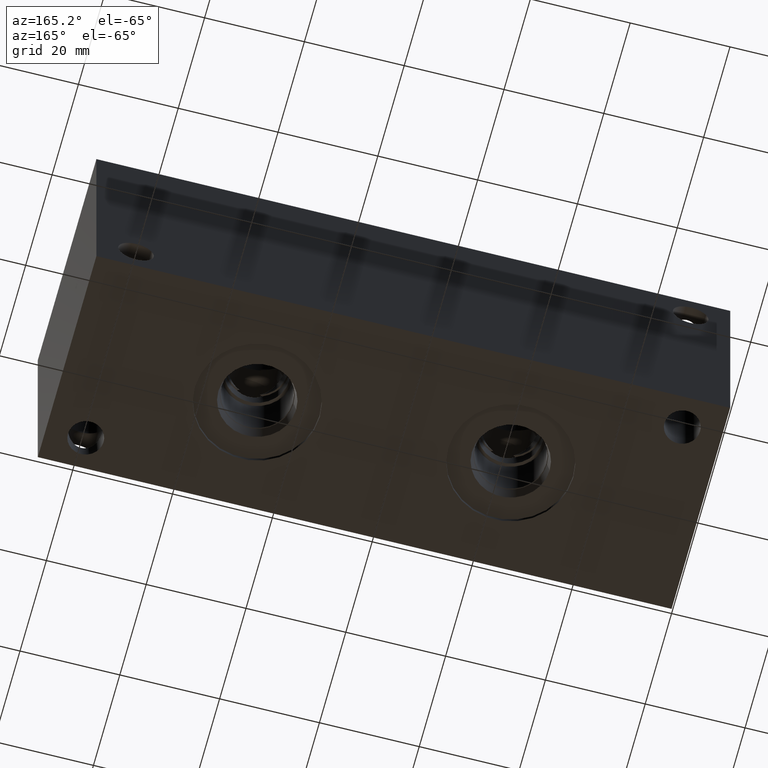
[diagram: clean part render]
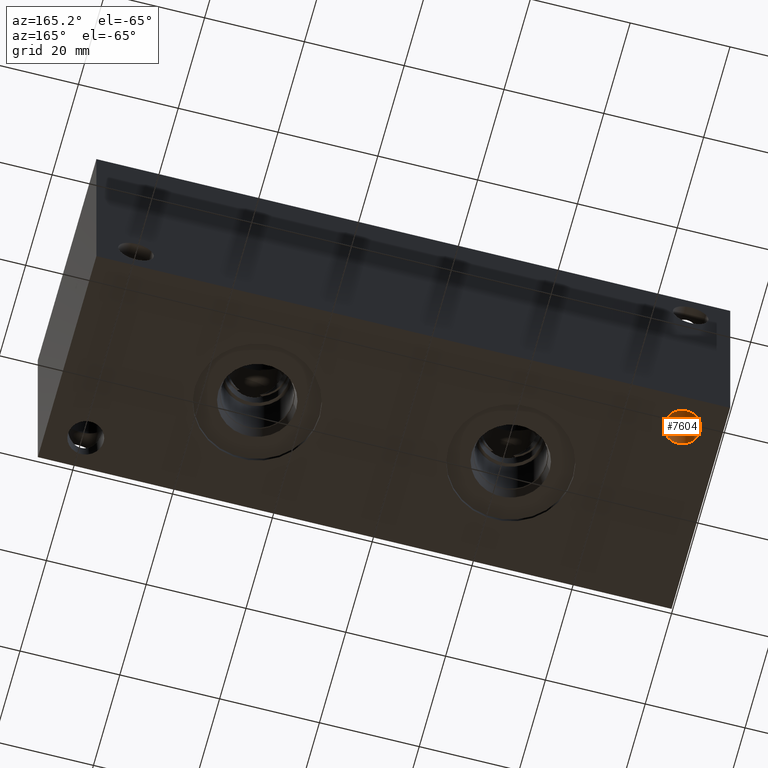
[diagram: same view with one face highlighted and labeled with its STEP entity id]
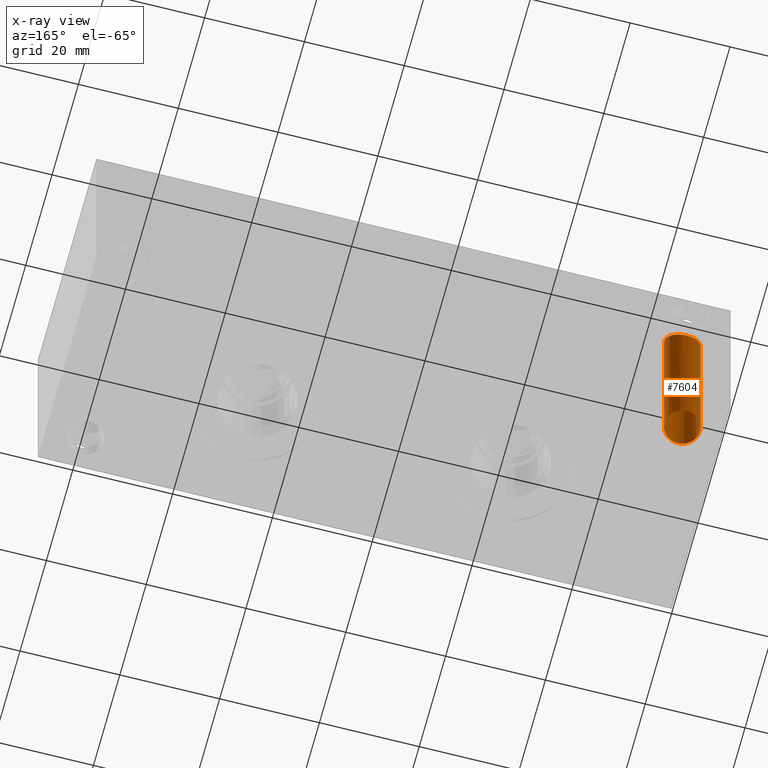
[diagram: x-ray of the same camera — body ghosted, the highlighted face saturated]
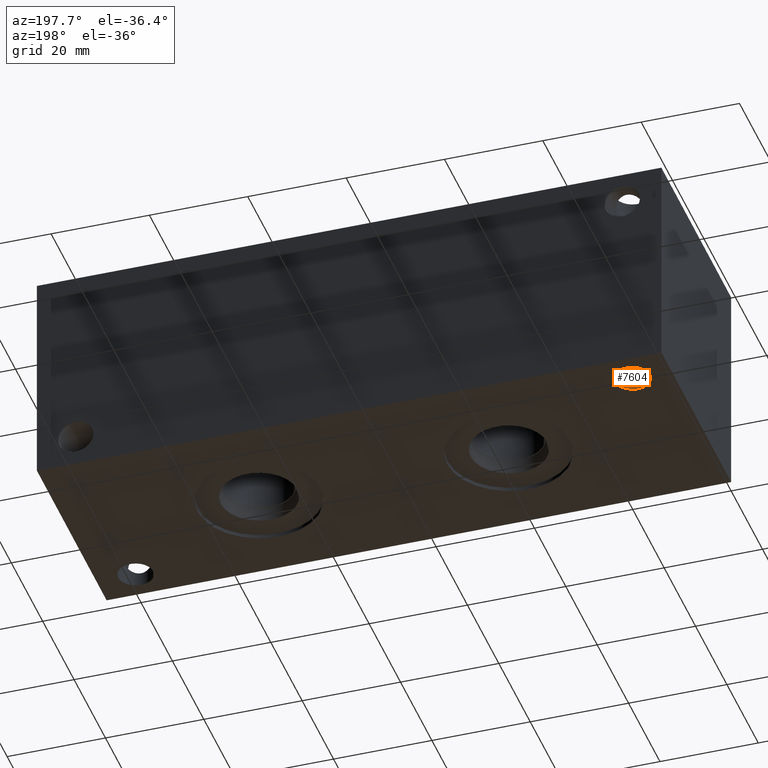
[diagram: same view with one face highlighted and labeled with its STEP entity id]
A machine part, auxiliary view. The second image highlights one B-rep face of the part: STEP entity #7604.
The next image is the same camera in x-ray: the body ghosted, the highlighted face saturated — about 1% of this face is hidden behind the body in this view.
A second angle (auxiliary view) of the same face is appended — the face is thin or edge-on in the first view.
In plain terms, the highlighted cylindrical surface (bore or boss wall) has radius 3.5687 mm, axis along (0, 0, 1).
Its self-contained STEP definition (entity closure, byte-faithful):
#26=ELLIPSE('',#7989,5.04690394004088,3.5687);
#27=ELLIPSE('',#7991,5.04690394004088,3.5687);
#95=CYLINDRICAL_SURFACE('',#8036,3.5687);
#215=CIRCLE('',#8037,3.5687);
#997=FACE_OUTER_BOUND('',#1428,.T.);
#1428=EDGE_LOOP('',(#6621,#6622,#6623,#6624,#6625));
#2121=LINE('',#13191,#2802);
#2802=VECTOR('',#9539,3.5687);
#3481=VERTEX_POINT('',#13093);
#3482=VERTEX_POINT('',#13095);
#3506=VERTEX_POINT('',#13190);
#4514=EDGE_CURVE('',#3481,#3482,#26,.T.);
#4515=EDGE_CURVE('',#3482,#3481,#27,.T.);
#4557=EDGE_CURVE('',#3481,#3506,#2121,.T.);
#4558=EDGE_CURVE('',#3506,#3506,#215,.T.);
#6621=ORIENTED_EDGE('',*,*,#4515,.T.);
#6622=ORIENTED_EDGE('',*,*,#4557,.T.);
#6623=ORIENTED_EDGE('',*,*,#4558,.F.);
#6624=ORIENTED_EDGE('',*,*,#4557,.F.);
#6625=ORIENTED_EDGE('',*,*,#4514,.T.);
#7604=ADVANCED_FACE('',(#997),#95,.F.);
#7989=AXIS2_PLACEMENT_3D('',#13097,#9431,#9432);
#7991=AXIS2_PLACEMENT_3D('',#13099,#9435,#9436);
#8036=AXIS2_PLACEMENT_3D('',#13189,#9537,#9538);
#8037=AXIS2_PLACEMENT_3D('',#13192,#9540,#9541);
#9431=DIRECTION('center_axis',(0.,-0.707106781186545,0.70710678118655));
#9432=DIRECTION('ref_axis',(0.,0.70710678118655,0.707106781186545));
#9435=DIRECTION('center_axis',(0.,0.707106781186545,0.70710678118655));
#9436=DIRECTION('ref_axis',(0.,-0.70710678118655,0.707106781186545));
#9537=DIRECTION('center_axis',(0.,0.,1.));
#9538=DIRECTION('ref_axis',(1.,0.,0.));
#9539=DIRECTION('',(0.,0.,-1.));
#9540=DIRECTION('center_axis',(0.,0.,1.));
#9541=DIRECTION('ref_axis',(1.,0.,0.));
#13093=CARTESIAN_POINT('',(4.3561,38.1,38.1));
#13095=CARTESIAN_POINT('',(11.4935,38.1,38.1));
#13097=CARTESIAN_POINT('Origin',(7.9248,38.1,38.1));
#13099=CARTESIAN_POINT('Origin',(7.9248,38.1,38.1));
#13189=CARTESIAN_POINT('Origin',(7.9248,38.1,-97.2560513880759));
#13190=CARTESIAN_POINT('',(4.3561,38.1,0.));
#13191=CARTESIAN_POINT('',(4.3561,38.1,-97.2560513880759));
#13192=CARTESIAN_POINT('Origin',(7.9248,38.1,0.));